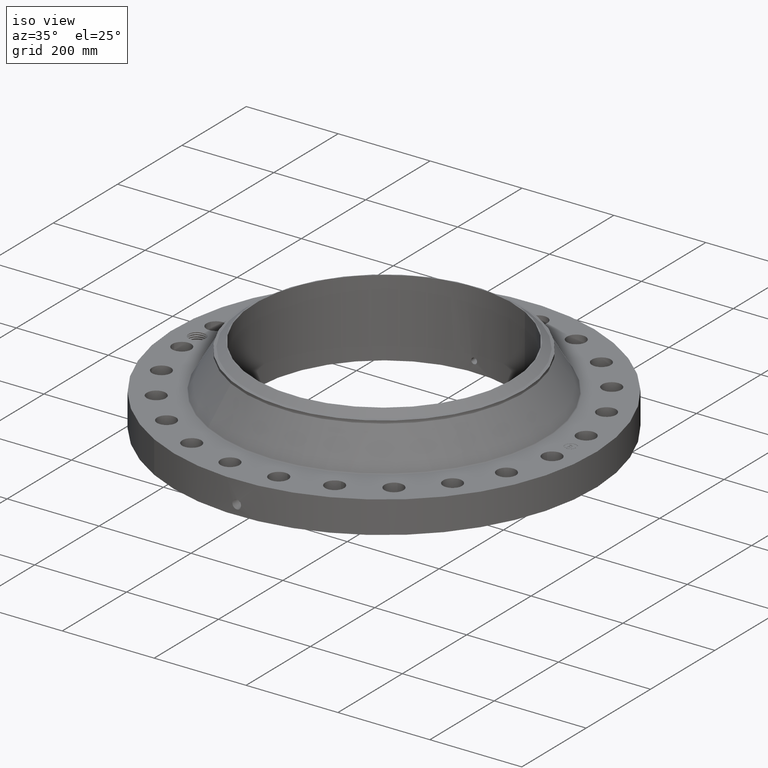
[diagram: clean part render]
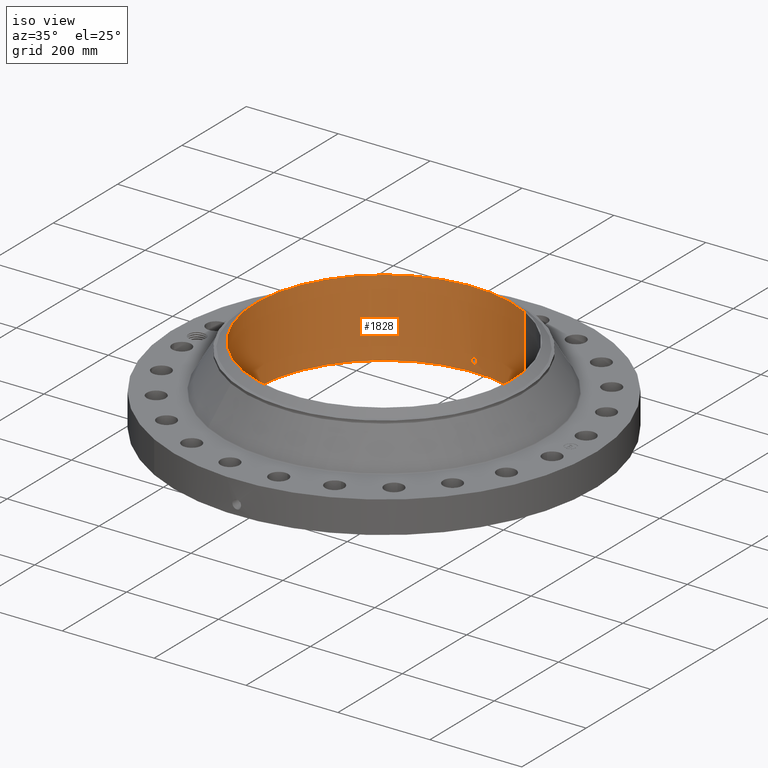
[diagram: tour spotlight — one face highlighted and labeled with its STEP entity id]
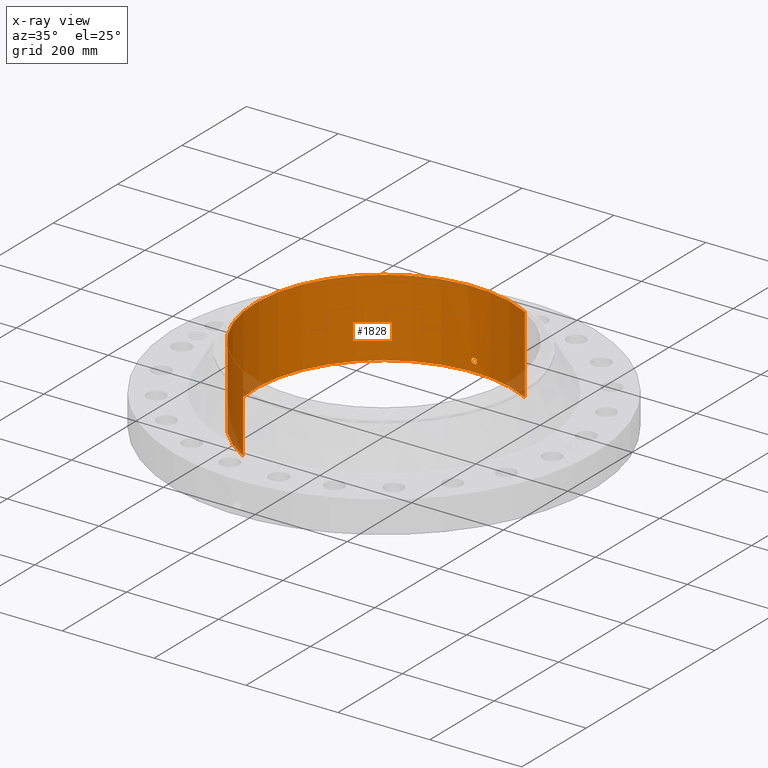
[diagram: x-ray of the same camera — body ghosted, this tour face saturated]
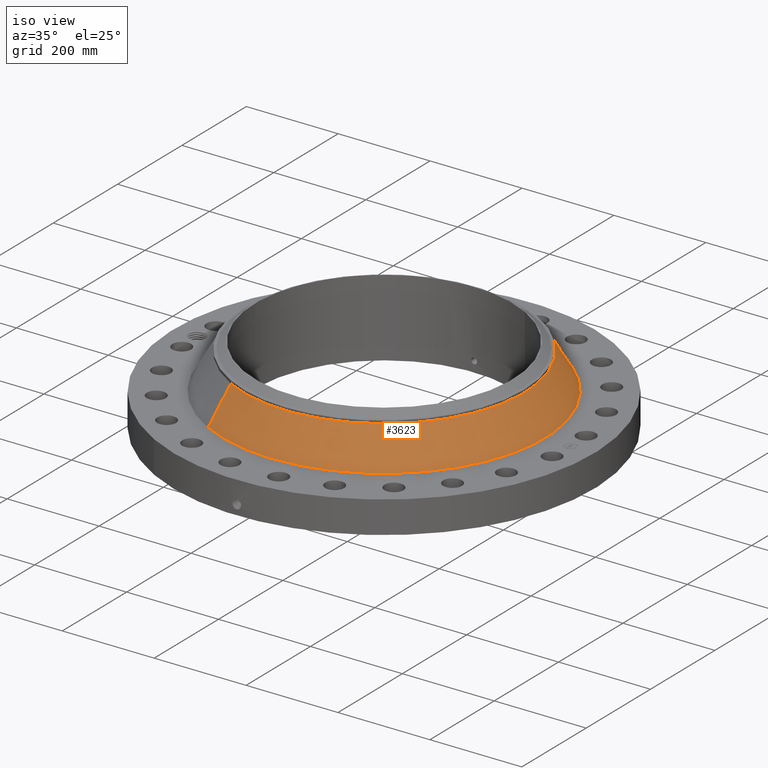
[diagram: tour spotlight — one face highlighted and labeled with its STEP entity id]
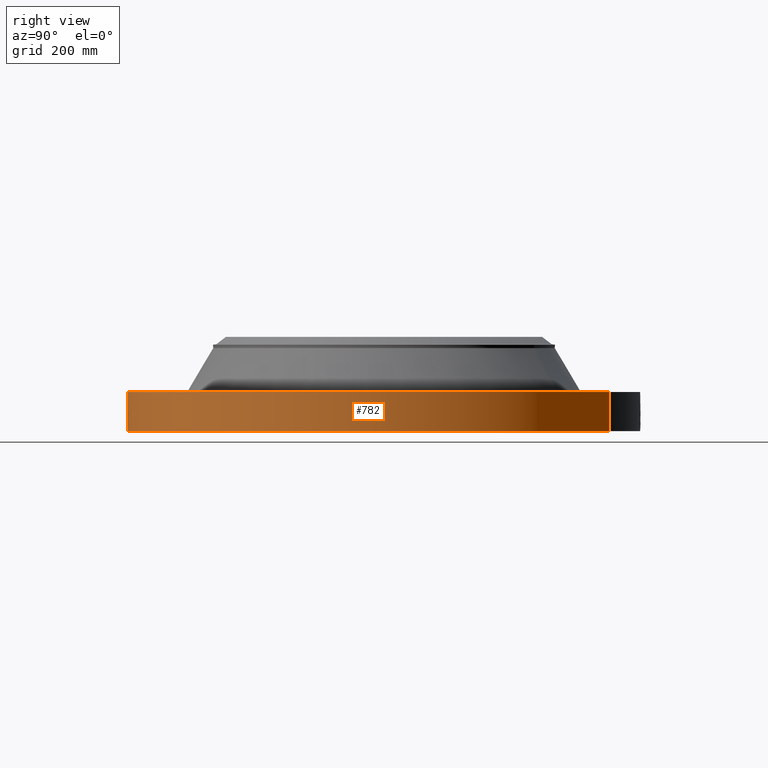
[diagram: tour spotlight — one face highlighted and labeled with its STEP entity id]
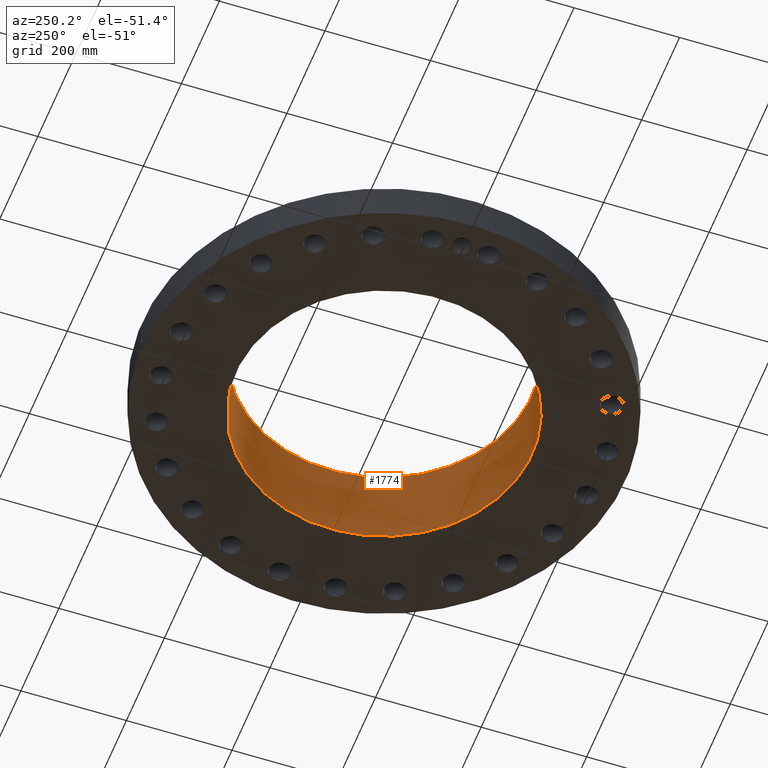
[diagram: tour spotlight — one face highlighted and labeled with its STEP entity id]
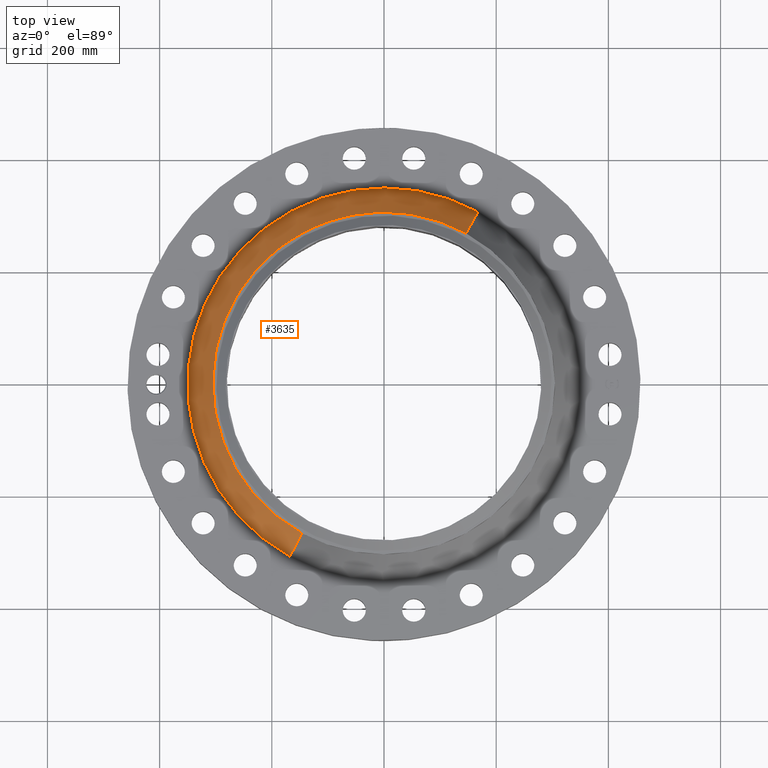
[diagram: tour spotlight — one face highlighted and labeled with its STEP entity id]
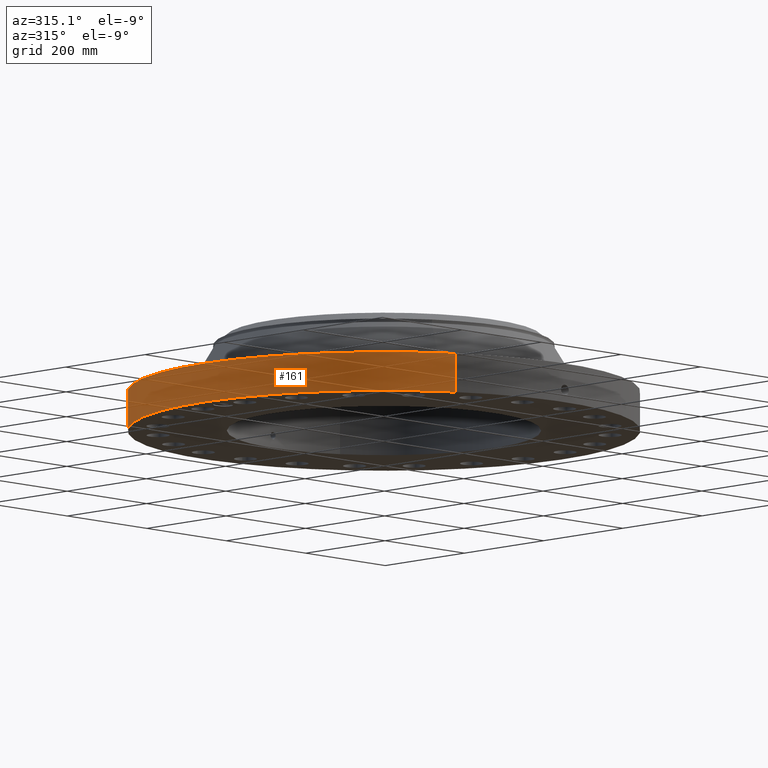
[diagram: tour spotlight — one face highlighted and labeled with its STEP entity id]
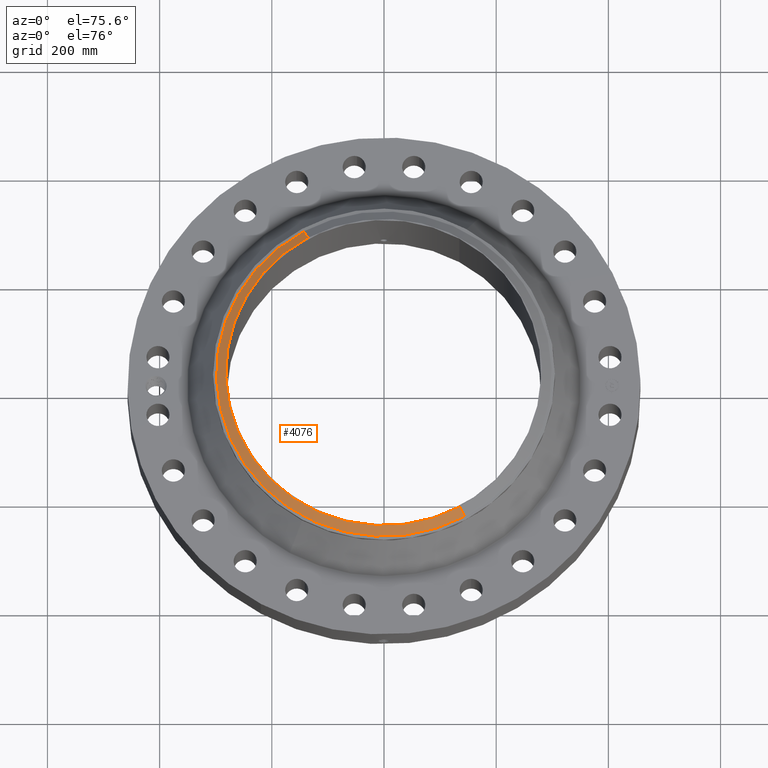
[diagram: tour spotlight — one face highlighted and labeled with its STEP entity id]
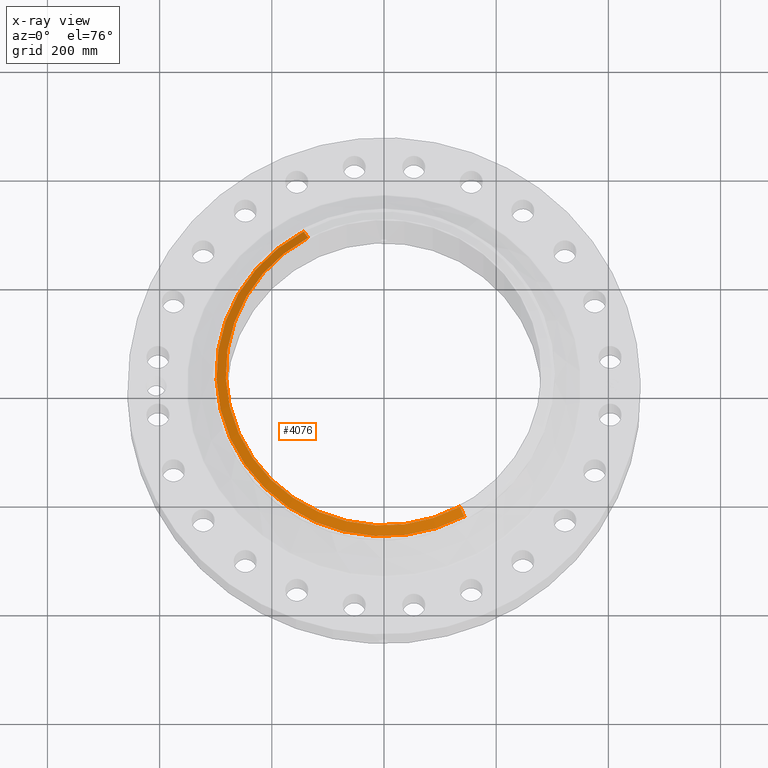
[diagram: x-ray of the same camera — body ghosted, this tour face saturated]
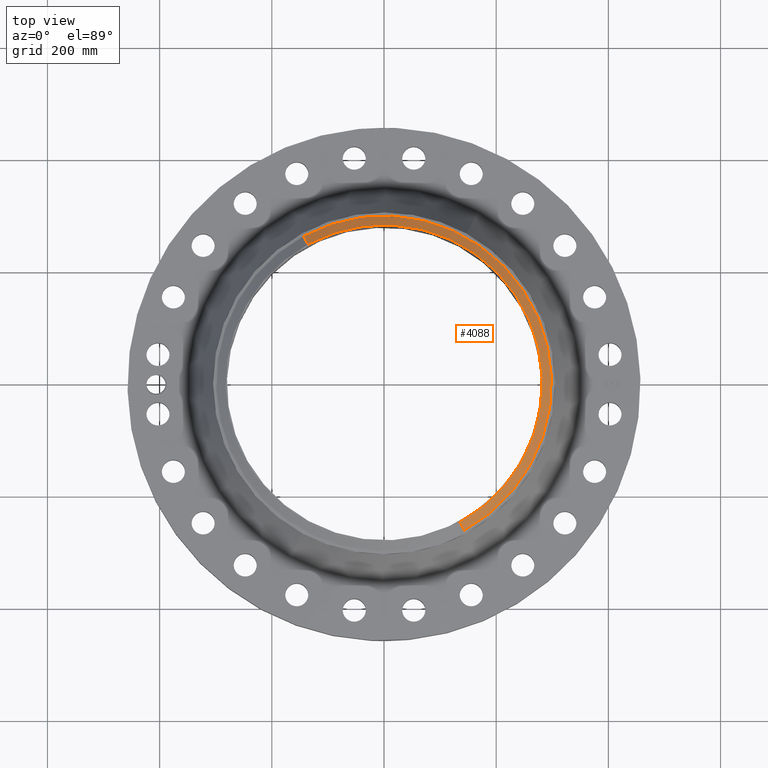
[diagram: tour spotlight — one face highlighted and labeled with its STEP entity id]
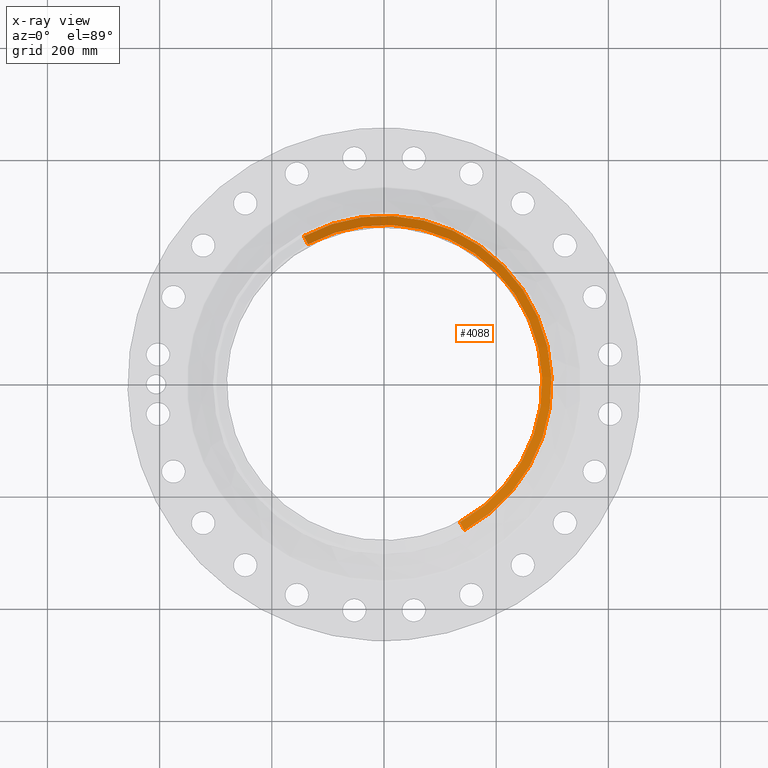
[diagram: x-ray of the same camera — body ghosted, this tour face saturated]
A machine part: a face-by-face anatomy tour. The part has 811 B-rep faces; the first image is the clean iso view, then the 8 largest visible faces are spotlighted one at a time (largest first), each with its STEP entity span.

Face 1 — iso view, entity #1828. An x-ray twin of the same camera follows (body ghosted, this face saturated) — the face is partly hidden behind the body. In plain terms, the highlighted cylindrical surface (partial cylindrical patch) has radius 280.187 mm, axis along (0, 0, -1).
Definition (entity closure, byte-faithful):
#262=AXIS2_PLACEMENT_3D('Circle Axis2P3D',#260,#261,$) ;
#1705=AXIS2_PLACEMENT_3D('Cylinder Axis2P3D',#1702,#1703,#1704) ;
#1777=AXIS2_PLACEMENT_3D('Circle Axis2P3D',#1775,#1776,$) ;
#255=CARTESIAN_POINT('Vertex',(5.28854311636,9.68061324025,0.0600000000002)) ;
#257=CARTESIAN_POINT('Vertex',(-5.28854311636,-9.68061324025,0.0600000000002)) ;
#260=CARTESIAN_POINT('Axis2P3D Location',(0.,0.,0.0600000000002)) ;
#1702=CARTESIAN_POINT('Axis2P3D Location',(0.,0.,3.37000000001)) ;
#1711=CARTESIAN_POINT('Vertex',(5.28854311636,9.68061324025,6.68000000003)) ;
#1713=CARTESIAN_POINT('Vertex',(-5.28854311636,-9.68061324025,6.68000000003)) ;
#1716=CARTESIAN_POINT('Line Origine',(5.28854311636,9.68061324025,3.37000000001)) ;
#1721=CARTESIAN_POINT('Line Origine',(-5.28854311636,-9.68061324025,3.37000000001)) ;
#1775=CARTESIAN_POINT('Axis2P3D Location',(0.,0.,6.68000000003)) ;
#1787=CARTESIAN_POINT('Control Point',(0.219395640473,11.0288180035,1.05985638466)) ;
#1788=CARTESIAN_POINT('Control Point',(0.194442744902,11.02931439,1.10553235362)) ;
#1789=CARTESIAN_POINT('Control Point',(0.157604046308,11.0299766217,1.14471319053)) ;
#1790=CARTESIAN_POINT('Control Point',(0.111104848743,11.0306207026,1.17324441451)) ;
#1791=CARTESIAN_POINT('Control Point',(0.0336689369204,11.0311331377,1.19588322566)) ;
#1792=CARTESIAN_POINT('Control Point',(-0.0446762513902,11.030956022,1.18805566324)) ;
#1793=CARTESIAN_POINT('Control Point',(-0.0703074712789,11.0308185288,1.18204211957)) ;
#1794=CARTESIAN_POINT('Control Point',(-0.14396541962,11.0302109711,1.15420674494)) ;
#1795=CARTESIAN_POINT('Control Point',(-0.203254200098,11.0292193473,1.09948605159)) ;
#1796=CARTESIAN_POINT('Control Point',(-0.232217354952,11.0285690599,1.05324252944)) ;
#1797=CARTESIAN_POINT('Control Point',(-0.255841819948,11.0280346243,0.975097496404)) ;
#1798=CARTESIAN_POINT('Control Point',(-0.248280457319,11.0282055388,0.8957371764)) ;
#1799=CARTESIAN_POINT('Control Point',(-0.242046735909,11.0283484844,0.869178407425)) ;
#1800=CARTESIAN_POINT('Control Point',(-0.232314046475,11.0285610184,0.843790598922)) ;
#1801=CARTESIAN_POINT('Control Point',(-0.219395640473,11.0288180035,0.820143615352)) ;
#1802=CARTESIAN_POINT('Vertex',(0.219395640473,11.0288180035,1.05985638466)) ;
#1804=CARTESIAN_POINT('Vertex',(-0.219395640473,11.0288180035,0.820143615352)) ;
#1808=CARTESIAN_POINT('Control Point',(-0.219395640473,11.0288180035,0.820143615352)) ;
#1809=CARTESIAN_POINT('Control Point',(-0.194442744874,11.02931439,0.774467646337)) ;
#1810=CARTESIAN_POINT('Control Point',(-0.157604046226,11.0299766217,0.735286809395)) ;
#1811=CARTESIAN_POINT('Control Point',(-0.111104848864,11.0306207026,0.70675558554)) ;
#1812=CARTESIAN_POINT('Control Point',(-0.0336689369954,11.0311331377,0.684116774346)) ;
#1813=CARTESIAN_POINT('Control Point',(0.0446762513633,11.030956022,0.691944336764)) ;
#1814=CARTESIAN_POINT('Control Point',(0.070307471291,11.0308185288,0.697957880447)) ;
#1815=CARTESIAN_POINT('Control Point',(0.143965419754,11.0302109711,0.725793255124)) ;
#1816=CARTESIAN_POINT('Control Point',(0.203254200306,11.0292193473,0.780513948612)) ;
#1817=CARTESIAN_POINT('Control Point',(0.232217354865,11.0285690599,0.826757470287)) ;
#1818=CARTESIAN_POINT('Control Point',(0.255841819961,11.0280346243,0.904902503457)) ;
#1819=CARTESIAN_POINT('Control Point',(0.24828045732,11.0282055388,0.984262823604)) ;
#1820=CARTESIAN_POINT('Control Point',(0.24204673591,11.0283484844,1.01082159258)) ;
#1821=CARTESIAN_POINT('Control Point',(0.232314046476,11.0285610184,1.03620940108)) ;
#1822=CARTESIAN_POINT('Control Point',(0.219395640473,11.0288180035,1.05985638466)) ;
#261=DIRECTION('Axis2P3D Direction',(0.,0.,-0.0393700787402)) ;
#1703=DIRECTION('Axis2P3D Direction',(0.,0.,-0.0393700787402)) ;
#1704=DIRECTION('Axis2P3D XDirection',(-0.0188750212049,-0.0345504945626,0.)) ;
#1717=DIRECTION('Vector Direction',(0.,0.,-0.0393700787402)) ;
#1722=DIRECTION('Vector Direction',(0.,0.,-0.0393700787402)) ;
#1776=DIRECTION('Axis2P3D Direction',(0.,0.,-0.0393700787402)) ;
#1718=VECTOR('Line Direction',#1717,0.0393700787402) ;
#1723=VECTOR('Line Direction',#1722,0.0393700787402) ;
#1781=ORIENTED_EDGE('',*,*,#1779,.F.) ;
#1782=ORIENTED_EDGE('',*,*,#1725,.T.) ;
#1783=ORIENTED_EDGE('',*,*,#264,.T.) ;
#1784=ORIENTED_EDGE('',*,*,#1720,.F.) ;
#1825=ORIENTED_EDGE('',*,*,#1806,.F.) ;
#1826=ORIENTED_EDGE('',*,*,#1823,.F.) ;
#1827=FACE_BOUND('',#1824,.T.) ;
#1828=ADVANCED_FACE('PartBody',(#1785,#1827),#1706,.F.) ;
#1786=B_SPLINE_CURVE_WITH_KNOTS('',5,(#1787,#1788,#1789,#1790,#1791,#1792,#1793,#1794,#1795,#1796,#1797,#1798,#1799,#1800,#1801),.UNSPECIFIED.,.F.,.U.,(6,3,3,3,6),(0.,9.34842080755,14.0229977669,23.3730436976,28.2128305319),.UNSPECIFIED.) ;
#1807=B_SPLINE_CURVE_WITH_KNOTS('',5,(#1808,#1809,#1810,#1811,#1812,#1813,#1814,#1815,#1816,#1817,#1818,#1819,#1820,#1821,#1822),.UNSPECIFIED.,.F.,.U.,(6,3,3,3,6),(0.,9.34842081791,14.0229977755,23.3730437313,28.2128305659),.UNSPECIFIED.) ;
#263=CIRCLE('generated circle',#262,11.031) ;
#1778=CIRCLE('generated circle',#1777,11.031) ;
#1706=CYLINDRICAL_SURFACE('generated cylinder',#1705,11.031) ;
#264=EDGE_CURVE('',#258,#256,#263,.T.) ;
#1720=EDGE_CURVE('',#1712,#256,#1719,.T.) ;
#1725=EDGE_CURVE('',#1714,#258,#1724,.T.) ;
#1779=EDGE_CURVE('',#1714,#1712,#1778,.T.) ;
#1806=EDGE_CURVE('',#1803,#1805,#1786,.T.) ;
#1823=EDGE_CURVE('',#1805,#1803,#1807,.T.) ;
#1780=EDGE_LOOP('',(#1781,#1782,#1783,#1784)) ;
#1824=EDGE_LOOP('',(#1825,#1826)) ;
#1785=FACE_OUTER_BOUND('',#1780,.T.) ;
#1719=LINE('Line',#1716,#1718) ;
#1724=LINE('Line',#1721,#1723) ;
#256=VERTEX_POINT('',#255) ;
#258=VERTEX_POINT('',#257) ;
#1712=VERTEX_POINT('',#1711) ;
#1714=VERTEX_POINT('',#1713) ;
#1803=VERTEX_POINT('',#1802) ;
#1805=VERTEX_POINT('',#1804) ;

Face 2 — iso view, entity #3623. In plain terms, the highlighted conical surface has half-angle 30.431 deg.
Definition (entity closure, byte-faithful):
#2882=AXIS2_PLACEMENT_3D('Circle Axis2P3D',#2880,#2881,$) ;
#3596=AXIS2_PLACEMENT_3D('Cone Axis2P3D',#3593,#3594,#3595) ;
#3607=AXIS2_PLACEMENT_3D('Circle Axis2P3D',#3605,#3606,$) ;
#2877=CARTESIAN_POINT('Vertex',(6.60418880603,12.0888865213,2.86921998732)) ;
#2880=CARTESIAN_POINT('Axis2P3D Location',(0.,0.,2.86921998732)) ;
#2884=CARTESIAN_POINT('Vertex',(-6.60418880603,-12.0888865213,2.86921998732)) ;
#3593=CARTESIAN_POINT('Axis2P3D Location',(0.,0.,5.89125151154)) ;
#3598=CARTESIAN_POINT('Line Origine',(6.17864763465,11.309938632,4.38023574943)) ;
#3602=CARTESIAN_POINT('Vertex',(5.75310646327,10.5309907427,5.89125151154)) ;
#3605=CARTESIAN_POINT('Axis2P3D Location',(0.,0.,5.89125151154)) ;
#3609=CARTESIAN_POINT('Vertex',(-5.75310646327,-10.5309907427,5.89125151154)) ;
#3612=CARTESIAN_POINT('Line Origine',(-6.17864763465,-11.309938632,4.38023574943)) ;
#2881=DIRECTION('Axis2P3D Direction',(0.,0.,-0.0393700787402)) ;
#3594=DIRECTION('Axis2P3D Direction',(0.,0.,-0.0393700787402)) ;
#3595=DIRECTION('Axis2P3D XDirection',(-0.0188750212049,-0.0345504945626,0.)) ;
#3599=DIRECTION('Vector Direction',(0.00956020023715,0.0174998291512,-0.0339464527029)) ;
#3606=DIRECTION('Axis2P3D Direction',(0.,0.,-0.0393700787402)) ;
#3613=DIRECTION('Vector Direction',(-0.00956020023715,-0.0174998291512,-0.0339464527029)) ;
#3600=VECTOR('Line Direction',#3599,0.0393700787402) ;
#3614=VECTOR('Line Direction',#3613,0.0393700787402) ;
#3618=ORIENTED_EDGE('',*,*,#2886,.F.) ;
#3619=ORIENTED_EDGE('',*,*,#3604,.T.) ;
#3620=ORIENTED_EDGE('',*,*,#3611,.T.) ;
#3621=ORIENTED_EDGE('',*,*,#3616,.F.) ;
#3623=ADVANCED_FACE('PartBody',(#3622),#3597,.T.) ;
#2883=CIRCLE('generated circle',#2882,13.7752127791) ;
#3608=CIRCLE('generated circle',#3607,12.) ;
#3597=CONICAL_SURFACE('Cone',#3596,12.,0.531120855844) ;
#2886=EDGE_CURVE('',#2878,#2885,#2883,.T.) ;
#3604=EDGE_CURVE('',#2878,#3603,#3601,.F.) ;
#3611=EDGE_CURVE('',#3603,#3610,#3608,.T.) ;
#3616=EDGE_CURVE('',#2885,#3610,#3615,.F.) ;
#3617=EDGE_LOOP('',(#3618,#3619,#3620,#3621)) ;
#3622=FACE_OUTER_BOUND('',#3617,.T.) ;
#3601=LINE('Line',#3598,#3600) ;
#3615=LINE('Line',#3612,#3614) ;
#2878=VERTEX_POINT('',#2877) ;
#2885=VERTEX_POINT('',#2884) ;
#3603=VERTEX_POINT('',#3602) ;
#3610=VERTEX_POINT('',#3609) ;

Face 3 — right view, entity #782. In plain terms, the highlighted cylindrical surface (partial cylindrical patch) has radius 457.2 mm, axis along (0, 0, -1).
Definition (entity closure, byte-faithful):
#38=AXIS2_PLACEMENT_3D('Cylinder Axis2P3D',#35,#36,#37) ;
#169=AXIS2_PLACEMENT_3D('Circle Axis2P3D',#167,#168,$) ;
#686=AXIS2_PLACEMENT_3D('Circle Axis2P3D',#684,#685,$) ;
#35=CARTESIAN_POINT('Axis2P3D Location',(0.,0.,3.37000000001)) ;
#44=CARTESIAN_POINT('Vertex',(-8.62965969491,-15.7964861141,0.0600000000002)) ;
#46=CARTESIAN_POINT('Vertex',(8.62965969491,15.7964861141,0.0600000000002)) ;
#49=CARTESIAN_POINT('Line Origine',(-8.62965969491,-15.7964861141,1.43500000001)) ;
#53=CARTESIAN_POINT('Vertex',(-8.62965969491,-15.7964861141,2.81000000001)) ;
#60=CARTESIAN_POINT('Vertex',(8.62965969491,15.7964861141,2.81000000001)) ;
#63=CARTESIAN_POINT('Line Origine',(8.62965969491,15.7964861141,1.43500000001)) ;
#167=CARTESIAN_POINT('Axis2P3D Location',(0.,0.,0.0600000000002)) ;
#684=CARTESIAN_POINT('Axis2P3D Location',(0.,0.,2.81000000001)) ;
#696=CARTESIAN_POINT('Control Point',(0.000715916272516,-17.9999999858,1.29411846164)) ;
#697=CARTESIAN_POINT('Control Point',(0.018794767014,-17.9999992668,1.29408195945)) ;
#698=CARTESIAN_POINT('Control Point',(0.0368704907854,-17.9999710998,1.29265734614)) ;
#699=CARTESIAN_POINT('Control Point',(0.0547316628354,-17.99991679,1.28986144223)) ;
#700=CARTESIAN_POINT('Vertex',(0.00071561728658,-17.9999999858,1.2941185108)) ;
#702=CARTESIAN_POINT('Vertex',(0.054723070488,-17.9999170677,1.28986280481)) ;
#706=CARTESIAN_POINT('Control Point',(0.054722976633,-17.9999168164,1.28986226213)) ;
#707=CARTESIAN_POINT('Control Point',(0.0953738332169,-17.9997932305,1.28552531456)) ;
#708=CARTESIAN_POINT('Control Point',(0.135409945979,-17.9995285052,1.27380449255)) ;
#709=CARTESIAN_POINT('Control Point',(0.172317078189,-17.9991751707,1.25545477223)) ;
#710=CARTESIAN_POINT('Vertex',(0.172317078189,-17.9991751707,1.25545477223)) ;
#714=CARTESIAN_POINT('Control Point',(0.0311785035352,-17.9999729973,0.531201562891)) ;
#715=CARTESIAN_POINT('Control Point',(0.071802499504,-17.9999026308,0.536338161167)) ;
#716=CARTESIAN_POINT('Control Point',(0.111634499071,-17.9997190308,0.54672885578)) ;
#717=CARTESIAN_POINT('Control Point',(0.149741617216,-17.9994324956,0.56221850727)) ;
#718=CARTESIAN_POINT('Control Point',(0.239620396416,-17.9985293262,0.613169843021)) ;
#719=CARTESIAN_POINT('Control Point',(0.308806249509,-17.9974126624,0.690006161424)) ;
#720=CARTESIAN_POINT('Control Point',(0.340722284388,-17.9967939004,0.743754792611)) ;
#721=CARTESIAN_POINT('Control Point',(0.375373751709,-17.9960901162,0.841059821661)) ;
#722=CARTESIAN_POINT('Control Point',(0.377750076793,-17.9960345675,0.942362779163)) ;
#723=CARTESIAN_POINT('Control Point',(0.373383149188,-17.9961284653,0.982905031293)) ;
#724=CARTESIAN_POINT('Control Point',(0.350799748737,-17.9966011635,1.07574548386)) ;
#725=CARTESIAN_POINT('Control Point',(0.30097918796,-17.9975215948,1.15733410869)) ;
#726=CARTESIAN_POINT('Control Point',(0.264028464088,-17.9981368944,1.19844198085)) ;
#727=CARTESIAN_POINT('Control Point',(0.220353851539,-17.9987152854,1.23157154256)) ;
#728=CARTESIAN_POINT('Control Point',(0.172317078189,-17.9991751707,1.25545477223)) ;
#729=CARTESIAN_POINT('Vertex',(0.0311785035352,-17.9999729973,0.531201562891)) ;
#733=CARTESIAN_POINT('Control Point',(0.0311785035352,-17.9999729973,0.531201562891)) ;
#734=CARTESIAN_POINT('Control Point',(0.0207810348001,-17.9999910072,0.530876353489)) ;
#735=CARTESIAN_POINT('Control Point',(0.0103754059314,-18.0000000016,0.5309342353)) ;
#736=CARTESIAN_POINT('Control Point',(-2.72878352964E-006,-18.0000000001,0.531374667806)) ;
#737=CARTESIAN_POINT('Vertex',(-2.72878354635E-006,-18.0000000001,0.531374667806)) ;
#741=CARTESIAN_POINT('Control Point',(-0.192490992805,-17.9989707267,0.587658904988)) ;
#742=CARTESIAN_POINT('Control Point',(-0.148953542637,-17.9994363404,0.562184957814)) ;
#743=CARTESIAN_POINT('Control Point',(-0.101107482183,-17.9998082664,0.543830382583)) ;
#744=CARTESIAN_POINT('Control Point',(-0.0508027302719,-17.9999999924,0.533530543736)) ;
#745=CARTESIAN_POINT('Control Point',(-2.72878352965E-006,-18.0000000001,0.531374667806)) ;
#746=CARTESIAN_POINT('Vertex',(-0.192490992805,-17.9989707267,0.587658904988)) ;
#750=CARTESIAN_POINT('Control Point',(-0.192490992805,-17.9989707267,0.587658904988)) ;
#751=CARTESIAN_POINT('Control Point',(-0.249225140634,-17.9983639802,0.62085429578)) ;
#752=CARTESIAN_POINT('Control Point',(-0.29911862737,-17.9976068279,0.665382621905)) ;
#753=CARTESIAN_POINT('Control Point',(-0.339016735981,-17.9968404577,0.719620461573)) ;
#754=CARTESIAN_POINT('Control Point',(-0.382904584845,-17.9959349998,0.817936937069)) ;
#755=CARTESIAN_POINT('Control Point',(-0.391223224504,-17.9957468042,0.923210605772)) ;
#756=CARTESIAN_POINT('Control Point',(-0.389017375864,-17.9957960737,0.963428947668)) ;
#757=CARTESIAN_POINT('Control Point',(-0.36934914129,-17.9962276358,1.06643517058)) ;
#758=CARTESIAN_POINT('Control Point',(-0.315771155087,-17.9972806993,1.15717933693)) ;
#759=CARTESIAN_POINT('Control Point',(-0.271217967036,-17.9980645582,1.20479213958)) ;
#760=CARTESIAN_POINT('Control Point',(-0.190427156307,-17.9991387671,1.26072522641)) ;
#761=CARTESIAN_POINT('Control Point',(-0.0985097274399,-17.9997740421,1.28789388359)) ;
#762=CARTESIAN_POINT('Control Point',(-0.0657534719722,-17.9999256067,1.29368529426)) ;
#763=CARTESIAN_POINT('Control Point',(-0.0327250899315,-18.0000000471,1.29575873174)) ;
#764=CARTESIAN_POINT('Control Point',(2.58579355424E-005,-18.0000000001,1.29415298429)) ;
#765=CARTESIAN_POINT('Vertex',(2.58579355492E-005,-18.0000000001,1.29415298429)) ;
#769=CARTESIAN_POINT('Control Point',(0.000715617277093,-17.9999999858,1.29411851078)) ;
#770=CARTESIAN_POINT('Control Point',(0.000370762243298,-17.9999999996,1.29413607398)) ;
#771=CARTESIAN_POINT('Control Point',(2.58579404369E-005,-18.0000000001,1.29415298429)) ;
#36=DIRECTION('Axis2P3D Direction',(0.,0.,-0.0393700787402)) ;
#37=DIRECTION('Axis2P3D XDirection',(0.0188750212049,0.0345504945626,0.)) ;
#50=DIRECTION('Vector Direction',(0.,0.,-0.0393700787402)) ;
#64=DIRECTION('Vector Direction',(0.,0.,-0.0393700787402)) ;
#168=DIRECTION('Axis2P3D Direction',(0.,0.,-0.0393700787402)) ;
#685=DIRECTION('Axis2P3D Direction',(0.,0.,-0.0393700787402)) ;
#51=VECTOR('Line Direction',#50,0.0393700787402) ;
#65=VECTOR('Line Direction',#64,0.0393700787402) ;
#690=ORIENTED_EDGE('',*,*,#171,.F.) ;
#691=ORIENTED_EDGE('',*,*,#67,.T.) ;
#692=ORIENTED_EDGE('',*,*,#688,.T.) ;
#693=ORIENTED_EDGE('',*,*,#55,.F.) ;
#774=ORIENTED_EDGE('',*,*,#704,.T.) ;
#775=ORIENTED_EDGE('',*,*,#712,.T.) ;
#776=ORIENTED_EDGE('',*,*,#731,.F.) ;
#777=ORIENTED_EDGE('',*,*,#739,.T.) ;
#778=ORIENTED_EDGE('',*,*,#748,.F.) ;
#779=ORIENTED_EDGE('',*,*,#767,.T.) ;
#780=ORIENTED_EDGE('',*,*,#772,.F.) ;
#781=FACE_BOUND('',#773,.T.) ;
#782=ADVANCED_FACE('PartBody',(#694,#781),#39,.T.) ;
#695=B_SPLINE_CURVE_WITH_KNOTS('',3,(#696,#697,#698,#699),.UNSPECIFIED.,.F.,.U.,(4,4),(34.616785024,36.6224614784),.UNSPECIFIED.) ;
#705=B_SPLINE_CURVE_WITH_KNOTS('',3,(#706,#707,#708,#709),.UNSPECIFIED.,.F.,.U.,(4,4),(0.,4.59363155679),.UNSPECIFIED.) ;
#713=B_SPLINE_CURVE_WITH_KNOTS('',5,(#714,#715,#716,#717,#718,#719,#720,#721,#722,#723,#724,#725,#726,#727,#728),.UNSPECIFIED.,.F.,.U.,(6,3,3,3,6),(0.,7.11615119467,18.0025199716,25.3409691079,35.3057659969),.UNSPECIFIED.) ;
#732=B_SPLINE_CURVE_WITH_KNOTS('',3,(#733,#734,#735,#736),.UNSPECIFIED.,.F.,.U.,(4,4),(0.,1.08463646199),.UNSPECIFIED.) ;
#740=B_SPLINE_CURVE_WITH_KNOTS('',4,(#741,#742,#743,#744,#745),.UNSPECIFIED.,.F.,.U.,(5,5),(0.,7.07892575861),.UNSPECIFIED.) ;
#749=B_SPLINE_CURVE_WITH_KNOTS('',5,(#750,#751,#752,#753,#754,#755,#756,#757,#758,#759,#760,#761,#762,#763,#764),.UNSPECIFIED.,.F.,.U.,(6,3,3,3,6),(0.,11.5307860791,18.6312315201,30.1312120278,36.2530440846),.UNSPECIFIED.) ;
#768=B_SPLINE_CURVE_WITH_KNOTS('',2,(#769,#770,#771),.UNSPECIFIED.,.F.,.U.,(3,3),(1.01704989143,1.04283780222),.UNSPECIFIED.) ;
#170=CIRCLE('generated circle',#169,18.0000000001) ;
#687=CIRCLE('generated circle',#686,18.0000000001) ;
#39=CYLINDRICAL_SURFACE('generated cylinder',#38,18.0000000001) ;
#55=EDGE_CURVE('',#45,#54,#52,.F.) ;
#67=EDGE_CURVE('',#47,#61,#66,.F.) ;
#171=EDGE_CURVE('',#47,#45,#170,.T.) ;
#688=EDGE_CURVE('',#61,#54,#687,.T.) ;
#704=EDGE_CURVE('',#701,#703,#695,.T.) ;
#712=EDGE_CURVE('',#703,#711,#705,.T.) ;
#731=EDGE_CURVE('',#730,#711,#713,.T.) ;
#739=EDGE_CURVE('',#730,#738,#732,.T.) ;
#748=EDGE_CURVE('',#747,#738,#740,.T.) ;
#767=EDGE_CURVE('',#747,#766,#749,.T.) ;
#772=EDGE_CURVE('',#701,#766,#768,.T.) ;
#689=EDGE_LOOP('',(#690,#691,#692,#693)) ;
#773=EDGE_LOOP('',(#774,#775,#776,#777,#778,#779,#780)) ;
#694=FACE_OUTER_BOUND('',#689,.T.) ;
#52=LINE('Line',#49,#51) ;
#66=LINE('Line',#63,#65) ;
#45=VERTEX_POINT('',#44) ;
#47=VERTEX_POINT('',#46) ;
#54=VERTEX_POINT('',#53) ;
#61=VERTEX_POINT('',#60) ;
#701=VERTEX_POINT('',#700) ;
#703=VERTEX_POINT('',#702) ;
#711=VERTEX_POINT('',#710) ;
#730=VERTEX_POINT('',#729) ;
#738=VERTEX_POINT('',#737) ;
#747=VERTEX_POINT('',#746) ;
#766=VERTEX_POINT('',#765) ;

Face 4 — auxiliary view, entity #1774. In plain terms, the highlighted cylindrical surface (partial cylindrical patch) has radius 280.187 mm, axis along (0, 0, -1).
Definition (entity closure, byte-faithful):
#253=AXIS2_PLACEMENT_3D('Circle Axis2P3D',#251,#252,$) ;
#1705=AXIS2_PLACEMENT_3D('Cylinder Axis2P3D',#1702,#1703,#1704) ;
#1709=AXIS2_PLACEMENT_3D('Circle Axis2P3D',#1707,#1708,$) ;
#251=CARTESIAN_POINT('Axis2P3D Location',(0.,0.,0.0600000000002)) ;
#255=CARTESIAN_POINT('Vertex',(5.28854311636,9.68061324025,0.0600000000002)) ;
#257=CARTESIAN_POINT('Vertex',(-5.28854311636,-9.68061324025,0.0600000000002)) ;
#1702=CARTESIAN_POINT('Axis2P3D Location',(0.,0.,3.37000000001)) ;
#1707=CARTESIAN_POINT('Axis2P3D Location',(0.,0.,6.68000000003)) ;
#1711=CARTESIAN_POINT('Vertex',(5.28854311636,9.68061324025,6.68000000003)) ;
#1713=CARTESIAN_POINT('Vertex',(-5.28854311636,-9.68061324025,6.68000000003)) ;
#1716=CARTESIAN_POINT('Line Origine',(5.28854311636,9.68061324025,3.37000000001)) ;
#1721=CARTESIAN_POINT('Line Origine',(-5.28854311636,-9.68061324025,3.37000000001)) ;
#1733=CARTESIAN_POINT('Control Point',(0.219395640473,-11.0288180035,0.820143615352)) ;
#1734=CARTESIAN_POINT('Control Point',(0.194442744882,-11.02931439,0.77446764635)) ;
#1735=CARTESIAN_POINT('Control Point',(0.157604046248,-11.0299766217,0.735286809417)) ;
#1736=CARTESIAN_POINT('Control Point',(0.111104848835,-11.0306207026,0.70675558553)) ;
#1737=CARTESIAN_POINT('Control Point',(0.0336689369562,-11.0311331377,0.68411677434)) ;
#1738=CARTESIAN_POINT('Control Point',(-0.0446762514132,-11.030956022,0.691944336769)) ;
#1739=CARTESIAN_POINT('Control Point',(-0.0703074712418,-11.0308185288,0.697957880429)) ;
#1740=CARTESIAN_POINT('Control Point',(-0.143965419661,-11.0302109711,0.725793255077)) ;
#1741=CARTESIAN_POINT('Control Point',(-0.203254200188,-11.0292193473,0.780513948504)) ;
#1742=CARTESIAN_POINT('Control Point',(-0.232217354911,-11.0285690599,0.826757470438)) ;
#1743=CARTESIAN_POINT('Control Point',(-0.255841819967,-11.0280346243,0.90490250358)) ;
#1744=CARTESIAN_POINT('Control Point',(-0.248280457312,-11.0282055388,0.984262823696)) ;
#1745=CARTESIAN_POINT('Control Point',(-0.242046735944,-11.0283484844,1.01082159249)) ;
#1746=CARTESIAN_POINT('Control Point',(-0.232314046498,-11.0285610184,1.03620940104)) ;
#1747=CARTESIAN_POINT('Control Point',(-0.219395640473,-11.0288180035,1.05985638466)) ;
#1748=CARTESIAN_POINT('Vertex',(0.219395640473,-11.0288180035,0.820143615352)) ;
#1750=CARTESIAN_POINT('Vertex',(-0.219395640473,-11.0288180035,1.05985638466)) ;
#1754=CARTESIAN_POINT('Control Point',(-0.219395640473,-11.0288180035,1.05985638466)) ;
#1755=CARTESIAN_POINT('Control Point',(-0.19444274487,-11.02931439,1.10553235368)) ;
#1756=CARTESIAN_POINT('Control Point',(-0.157604046214,-11.0299766217,1.14471319063)) ;
#1757=CARTESIAN_POINT('Control Point',(-0.111104848876,-11.0306207026,1.17324441447)) ;
#1758=CARTESIAN_POINT('Control Point',(-0.0336689369968,-11.0311331377,1.19588322566)) ;
#1759=CARTESIAN_POINT('Control Point',(0.0446762513717,-11.030956022,1.18805566324)) ;
#1760=CARTESIAN_POINT('Control Point',(0.0703074712945,-11.0308185288,1.18204211956)) ;
#1761=CARTESIAN_POINT('Control Point',(0.143965419656,-11.0302109711,1.15420674492)) ;
#1762=CARTESIAN_POINT('Control Point',(0.203254200145,-11.0292193473,1.09948605154)) ;
#1763=CARTESIAN_POINT('Control Point',(0.232217354933,-11.0285690599,1.0532425295)) ;
#1764=CARTESIAN_POINT('Control Point',(0.255841819972,-11.0280346243,0.975097496368)) ;
#1765=CARTESIAN_POINT('Control Point',(0.248280457306,-11.0282055388,0.89573717626)) ;
#1766=CARTESIAN_POINT('Control Point',(0.242046735959,-11.0283484844,0.869178407557)) ;
#1767=CARTESIAN_POINT('Control Point',(0.232314046508,-11.0285610184,0.843790598983)) ;
#1768=CARTESIAN_POINT('Control Point',(0.219395640473,-11.0288180035,0.820143615352)) ;
#252=DIRECTION('Axis2P3D Direction',(0.,0.,-0.0393700787402)) ;
#1703=DIRECTION('Axis2P3D Direction',(0.,0.,-0.0393700787402)) ;
#1704=DIRECTION('Axis2P3D XDirection',(-0.0188750212049,-0.0345504945626,0.)) ;
#1708=DIRECTION('Axis2P3D Direction',(0.,0.,-0.0393700787402)) ;
#1717=DIRECTION('Vector Direction',(0.,0.,-0.0393700787402)) ;
#1722=DIRECTION('Vector Direction',(0.,0.,-0.0393700787402)) ;
#1718=VECTOR('Line Direction',#1717,0.0393700787402) ;
#1723=VECTOR('Line Direction',#1722,0.0393700787402) ;
#1727=ORIENTED_EDGE('',*,*,#1715,.F.) ;
#1728=ORIENTED_EDGE('',*,*,#1720,.T.) ;
#1729=ORIENTED_EDGE('',*,*,#259,.T.) ;
#1730=ORIENTED_EDGE('',*,*,#1725,.F.) ;
#1771=ORIENTED_EDGE('',*,*,#1752,.F.) ;
#1772=ORIENTED_EDGE('',*,*,#1769,.F.) ;
#1773=FACE_BOUND('',#1770,.T.) ;
#1774=ADVANCED_FACE('PartBody',(#1731,#1773),#1706,.F.) ;
#1732=B_SPLINE_CURVE_WITH_KNOTS('',5,(#1733,#1734,#1735,#1736,#1737,#1738,#1739,#1740,#1741,#1742,#1743,#1744,#1745,#1746,#1747),.UNSPECIFIED.,.F.,.U.,(6,3,3,3,6),(0.,9.34842081521,14.0229977773,23.3730437194,28.2128305623),.UNSPECIFIED.) ;
#1753=B_SPLINE_CURVE_WITH_KNOTS('',5,(#1754,#1755,#1756,#1757,#1758,#1759,#1760,#1761,#1762,#1763,#1764,#1765,#1766,#1767,#1768),.UNSPECIFIED.,.F.,.U.,(6,3,3,3,6),(0.,9.34842081949,14.0229977773,23.3730437137,28.2128305605),.UNSPECIFIED.) ;
#254=CIRCLE('generated circle',#253,11.031) ;
#1710=CIRCLE('generated circle',#1709,11.031) ;
#1706=CYLINDRICAL_SURFACE('generated cylinder',#1705,11.031) ;
#259=EDGE_CURVE('',#256,#258,#254,.T.) ;
#1715=EDGE_CURVE('',#1712,#1714,#1710,.T.) ;
#1720=EDGE_CURVE('',#1712,#256,#1719,.T.) ;
#1725=EDGE_CURVE('',#1714,#258,#1724,.T.) ;
#1752=EDGE_CURVE('',#1749,#1751,#1732,.T.) ;
#1769=EDGE_CURVE('',#1751,#1749,#1753,.T.) ;
#1726=EDGE_LOOP('',(#1727,#1728,#1729,#1730)) ;
#1770=EDGE_LOOP('',(#1771,#1772)) ;
#1731=FACE_OUTER_BOUND('',#1726,.T.) ;
#1719=LINE('Line',#1716,#1718) ;
#1724=LINE('Line',#1721,#1723) ;
#256=VERTEX_POINT('',#255) ;
#258=VERTEX_POINT('',#257) ;
#1712=VERTEX_POINT('',#1711) ;
#1714=VERTEX_POINT('',#1713) ;
#1749=VERTEX_POINT('',#1748) ;
#1751=VERTEX_POINT('',#1750) ;

Face 5 — top view, entity #3635. In plain terms, the highlighted conical surface has half-angle 30.431 deg.
Definition (entity closure, byte-faithful):
#2901=AXIS2_PLACEMENT_3D('Circle Axis2P3D',#2899,#2900,$) ;
#3596=AXIS2_PLACEMENT_3D('Cone Axis2P3D',#3593,#3594,#3595) ;
#3626=AXIS2_PLACEMENT_3D('Circle Axis2P3D',#3624,#3625,$) ;
#2877=CARTESIAN_POINT('Vertex',(6.60418880603,12.0888865213,2.86921998732)) ;
#2884=CARTESIAN_POINT('Vertex',(-6.60418880603,-12.0888865213,2.86921998732)) ;
#2899=CARTESIAN_POINT('Axis2P3D Location',(0.,0.,2.86921998732)) ;
#3593=CARTESIAN_POINT('Axis2P3D Location',(0.,0.,5.89125151154)) ;
#3598=CARTESIAN_POINT('Line Origine',(6.17864763465,11.309938632,4.38023574943)) ;
#3602=CARTESIAN_POINT('Vertex',(5.75310646327,10.5309907427,5.89125151154)) ;
#3609=CARTESIAN_POINT('Vertex',(-5.75310646327,-10.5309907427,5.89125151154)) ;
#3612=CARTESIAN_POINT('Line Origine',(-6.17864763465,-11.309938632,4.38023574943)) ;
#3624=CARTESIAN_POINT('Axis2P3D Location',(0.,0.,5.89125151154)) ;
#2900=DIRECTION('Axis2P3D Direction',(0.,0.,-0.0393700787402)) ;
#3594=DIRECTION('Axis2P3D Direction',(0.,0.,-0.0393700787402)) ;
#3595=DIRECTION('Axis2P3D XDirection',(-0.0188750212049,-0.0345504945626,0.)) ;
#3599=DIRECTION('Vector Direction',(0.00956020023715,0.0174998291512,-0.0339464527029)) ;
#3613=DIRECTION('Vector Direction',(-0.00956020023715,-0.0174998291512,-0.0339464527029)) ;
#3625=DIRECTION('Axis2P3D Direction',(0.,0.,-0.0393700787402)) ;
#3600=VECTOR('Line Direction',#3599,0.0393700787402) ;
#3614=VECTOR('Line Direction',#3613,0.0393700787402) ;
#3630=ORIENTED_EDGE('',*,*,#2903,.F.) ;
#3631=ORIENTED_EDGE('',*,*,#3616,.T.) ;
#3632=ORIENTED_EDGE('',*,*,#3628,.T.) ;
#3633=ORIENTED_EDGE('',*,*,#3604,.F.) ;
#3635=ADVANCED_FACE('PartBody',(#3634),#3597,.T.) ;
#2902=CIRCLE('generated circle',#2901,13.7752127791) ;
#3627=CIRCLE('generated circle',#3626,12.) ;
#3597=CONICAL_SURFACE('Cone',#3596,12.,0.531120855844) ;
#2903=EDGE_CURVE('',#2885,#2878,#2902,.T.) ;
#3604=EDGE_CURVE('',#2878,#3603,#3601,.F.) ;
#3616=EDGE_CURVE('',#2885,#3610,#3615,.F.) ;
#3628=EDGE_CURVE('',#3610,#3603,#3627,.T.) ;
#3629=EDGE_LOOP('',(#3630,#3631,#3632,#3633)) ;
#3634=FACE_OUTER_BOUND('',#3629,.T.) ;
#3601=LINE('Line',#3598,#3600) ;
#3615=LINE('Line',#3612,#3614) ;
#2878=VERTEX_POINT('',#2877) ;
#2885=VERTEX_POINT('',#2884) ;
#3603=VERTEX_POINT('',#3602) ;
#3610=VERTEX_POINT('',#3609) ;

Face 6 — auxiliary view, entity #161. In plain terms, the highlighted cylindrical surface (partial cylindrical patch) has radius 457.2 mm, axis along (0, 0, -1).
Definition (entity closure, byte-faithful):
#38=AXIS2_PLACEMENT_3D('Cylinder Axis2P3D',#35,#36,#37) ;
#42=AXIS2_PLACEMENT_3D('Circle Axis2P3D',#40,#41,$) ;
#58=AXIS2_PLACEMENT_3D('Circle Axis2P3D',#56,#57,$) ;
#35=CARTESIAN_POINT('Axis2P3D Location',(0.,0.,3.37000000001)) ;
#40=CARTESIAN_POINT('Axis2P3D Location',(0.,0.,0.0600000000002)) ;
#44=CARTESIAN_POINT('Vertex',(-8.62965969491,-15.7964861141,0.0600000000002)) ;
#46=CARTESIAN_POINT('Vertex',(8.62965969491,15.7964861141,0.0600000000002)) ;
#49=CARTESIAN_POINT('Line Origine',(-8.62965969491,-15.7964861141,1.43500000001)) ;
#53=CARTESIAN_POINT('Vertex',(-8.62965969491,-15.7964861141,2.81000000001)) ;
#56=CARTESIAN_POINT('Axis2P3D Location',(0.,0.,2.81000000001)) ;
#60=CARTESIAN_POINT('Vertex',(8.62965969491,15.7964861141,2.81000000001)) ;
#63=CARTESIAN_POINT('Line Origine',(8.62965969491,15.7964861141,1.43500000001)) ;
#75=CARTESIAN_POINT('Control Point',(-0.000715916274661,17.9999999858,1.29411846164)) ;
#76=CARTESIAN_POINT('Control Point',(-0.018794767023,17.9999992668,1.29408195945)) ;
#77=CARTESIAN_POINT('Control Point',(-0.0368704907874,17.9999710998,1.29265734614)) ;
#78=CARTESIAN_POINT('Control Point',(-0.0547316628362,17.99991679,1.28986144223)) ;
#79=CARTESIAN_POINT('Vertex',(-0.000715617286584,17.9999999858,1.2941185108)) ;
#81=CARTESIAN_POINT('Vertex',(-0.054723070488,17.9999170677,1.28986280481)) ;
#85=CARTESIAN_POINT('Control Point',(-0.054722976633,17.9999168164,1.28986226213)) ;
#86=CARTESIAN_POINT('Control Point',(-0.095373833201,17.9997932305,1.28552531456)) ;
#87=CARTESIAN_POINT('Control Point',(-0.135409945993,17.9995285052,1.27380449254)) ;
#88=CARTESIAN_POINT('Control Point',(-0.172317078189,17.9991751707,1.25545477223)) ;
#89=CARTESIAN_POINT('Vertex',(-0.172317078189,17.9991751707,1.25545477223)) ;
#93=CARTESIAN_POINT('Control Point',(-0.0311785035352,17.9999729973,0.531201562891)) ;
#94=CARTESIAN_POINT('Control Point',(-0.0718024994849,17.9999026308,0.536338161165)) ;
#95=CARTESIAN_POINT('Control Point',(-0.111634499034,17.9997190308,0.546728855768)) ;
#96=CARTESIAN_POINT('Control Point',(-0.149741617246,17.9994324956,0.562218507288)) ;
#97=CARTESIAN_POINT('Control Point',(-0.239620396387,17.9985293262,0.613169843011)) ;
#98=CARTESIAN_POINT('Control Point',(-0.308806249445,17.9974126624,0.690006161352)) ;
#99=CARTESIAN_POINT('Control Point',(-0.340722284417,17.9967939004,0.743754792694)) ;
#100=CARTESIAN_POINT('Control Point',(-0.375373751698,17.9960901162,0.841059821668)) ;
#101=CARTESIAN_POINT('Control Point',(-0.377750076791,17.9960345675,0.942362779085)) ;
#102=CARTESIAN_POINT('Control Point',(-0.373383149171,17.9961284653,0.982905031362)) ;
#103=CARTESIAN_POINT('Control Point',(-0.350799748722,17.9966011635,1.07574548387)) ;
#104=CARTESIAN_POINT('Control Point',(-0.300979187977,17.9975215948,1.15733410866)) ;
#105=CARTESIAN_POINT('Control Point',(-0.264028464066,17.9981368944,1.19844198088)) ;
#106=CARTESIAN_POINT('Control Point',(-0.220353851526,17.9987152854,1.23157154257)) ;
#107=CARTESIAN_POINT('Control Point',(-0.172317078189,17.9991751707,1.25545477223)) ;
#108=CARTESIAN_POINT('Vertex',(-0.0311785035352,17.9999729973,0.531201562891)) ;
#112=CARTESIAN_POINT('Control Point',(-0.0311785035352,17.9999729973,0.531201562891)) ;
#113=CARTESIAN_POINT('Control Point',(-0.0207810348001,17.9999910072,0.530876353489)) ;
#114=CARTESIAN_POINT('Control Point',(-0.0103754059313,18.0000000016,0.5309342353)) ;
#115=CARTESIAN_POINT('Control Point',(2.7287835594E-006,18.0000000001,0.531374667806)) ;
#116=CARTESIAN_POINT('Vertex',(2.72878354411E-006,18.0000000001,0.531374667806)) ;
#120=CARTESIAN_POINT('Control Point',(0.192490992805,17.9989707267,0.587658904988)) ;
#121=CARTESIAN_POINT('Control Point',(0.148953542646,17.9994363404,0.562184957819)) ;
#122=CARTESIAN_POINT('Control Point',(0.101107482173,17.9998082664,0.54383038258)) ;
#123=CARTESIAN_POINT('Control Point',(0.0508027302623,17.9999999924,0.533530543736)) ;
#124=CARTESIAN_POINT('Control Point',(2.72878359137E-006,18.0000000001,0.531374667806)) ;
#125=CARTESIAN_POINT('Vertex',(0.192490992805,17.9989707267,0.587658904988)) ;
#129=CARTESIAN_POINT('Control Point',(0.192490992805,17.9989707267,0.587658904988)) ;
#130=CARTESIAN_POINT('Control Point',(0.249225140592,17.9983639802,0.620854295756)) ;
#131=CARTESIAN_POINT('Control Point',(0.299118627294,17.9976068279,0.665382621843)) ;
#132=CARTESIAN_POINT('Control Point',(0.339016736025,17.9968404577,0.719620461667)) ;
#133=CARTESIAN_POINT('Control Point',(0.382904584906,17.9959349998,0.817936937249)) ;
#134=CARTESIAN_POINT('Control Point',(0.391223224526,17.9957468042,0.923210606049)) ;
#135=CARTESIAN_POINT('Control Point',(0.389017375915,17.9957960737,0.963428947406)) ;
#136=CARTESIAN_POINT('Control Point',(0.369349141355,17.9962276358,1.06643517048)) ;
#137=CARTESIAN_POINT('Control Point',(0.315771155081,17.9972806993,1.15717933695)) ;
#138=CARTESIAN_POINT('Control Point',(0.271217967044,17.9980645582,1.20479213958)) ;
#139=CARTESIAN_POINT('Control Point',(0.190427156315,17.9991387671,1.2607252264)) ;
#140=CARTESIAN_POINT('Control Point',(0.0985097274533,17.9997740421,1.28789388359)) ;
#141=CARTESIAN_POINT('Control Point',(0.0657534719546,17.9999256067,1.29368529426)) ;
#142=CARTESIAN_POINT('Control Point',(0.0327250899227,18.0000000471,1.29575873174)) ;
#143=CARTESIAN_POINT('Control Point',(-2.58579355766E-005,18.0000000001,1.29415298429)) ;
#144=CARTESIAN_POINT('Vertex',(-2.58579355513E-005,18.0000000001,1.29415298429)) ;
#148=CARTESIAN_POINT('Control Point',(-0.000715617277151,17.9999999858,1.29411851078)) ;
#149=CARTESIAN_POINT('Control Point',(-0.000370762243332,17.9999999996,1.29413607398)) ;
#150=CARTESIAN_POINT('Control Point',(-2.58579404476E-005,18.0000000001,1.29415298429)) ;
#36=DIRECTION('Axis2P3D Direction',(0.,0.,-0.0393700787402)) ;
#37=DIRECTION('Axis2P3D XDirection',(0.0188750212049,0.0345504945626,0.)) ;
#41=DIRECTION('Axis2P3D Direction',(0.,0.,-0.0393700787402)) ;
#50=DIRECTION('Vector Direction',(0.,0.,-0.0393700787402)) ;
#57=DIRECTION('Axis2P3D Direction',(0.,0.,-0.0393700787402)) ;
#64=DIRECTION('Vector Direction',(0.,0.,-0.0393700787402)) ;
#51=VECTOR('Line Direction',#50,0.0393700787402) ;
#65=VECTOR('Line Direction',#64,0.0393700787402) ;
#69=ORIENTED_EDGE('',*,*,#48,.F.) ;
#70=ORIENTED_EDGE('',*,*,#55,.T.) ;
#71=ORIENTED_EDGE('',*,*,#62,.T.) ;
#72=ORIENTED_EDGE('',*,*,#67,.F.) ;
#153=ORIENTED_EDGE('',*,*,#83,.T.) ;
#154=ORIENTED_EDGE('',*,*,#91,.T.) ;
#155=ORIENTED_EDGE('',*,*,#110,.F.) ;
#156=ORIENTED_EDGE('',*,*,#118,.T.) ;
#157=ORIENTED_EDGE('',*,*,#127,.F.) ;
#158=ORIENTED_EDGE('',*,*,#146,.T.) ;
#159=ORIENTED_EDGE('',*,*,#151,.F.) ;
#160=FACE_BOUND('',#152,.T.) ;
#161=ADVANCED_FACE('PartBody',(#73,#160),#39,.T.) ;
#74=B_SPLINE_CURVE_WITH_KNOTS('',3,(#75,#76,#77,#78),.UNSPECIFIED.,.F.,.U.,(4,4),(34.6167849342,36.6224613883),.UNSPECIFIED.) ;
#84=B_SPLINE_CURVE_WITH_KNOTS('',3,(#85,#86,#87,#88),.UNSPECIFIED.,.F.,.U.,(4,4),(0.,4.593631555),.UNSPECIFIED.) ;
#92=B_SPLINE_CURVE_WITH_KNOTS('',5,(#93,#94,#95,#96,#97,#98,#99,#100,#101,#102,#103,#104,#105,#106,#107),.UNSPECIFIED.,.F.,.U.,(6,3,3,3,6),(0.,7.11615119134,18.0025199602,25.3409690897,35.305765976),.UNSPECIFIED.) ;
#111=B_SPLINE_CURVE_WITH_KNOTS('',3,(#112,#113,#114,#115),.UNSPECIFIED.,.F.,.U.,(4,4),(0.,1.08463646199),.UNSPECIFIED.) ;
#119=B_SPLINE_CURVE_WITH_KNOTS('',4,(#120,#121,#122,#123,#124),.UNSPECIFIED.,.F.,.U.,(5,5),(0.,7.07892575726),.UNSPECIFIED.) ;
#128=B_SPLINE_CURVE_WITH_KNOTS('',5,(#129,#130,#131,#132,#133,#134,#135,#136,#137,#138,#139,#140,#141,#142,#143),.UNSPECIFIED.,.F.,.U.,(6,3,3,3,6),(0.,11.5307860706,18.6312315356,30.1312120444,36.2530440996),.UNSPECIFIED.) ;
#147=B_SPLINE_CURVE_WITH_KNOTS('',2,(#148,#149,#150),.UNSPECIFIED.,.F.,.U.,(3,3),(1.01704989143,1.04283780222),.UNSPECIFIED.) ;
#43=CIRCLE('generated circle',#42,18.0000000001) ;
#59=CIRCLE('generated circle',#58,18.0000000001) ;
#39=CYLINDRICAL_SURFACE('generated cylinder',#38,18.0000000001) ;
#48=EDGE_CURVE('',#45,#47,#43,.T.) ;
#55=EDGE_CURVE('',#45,#54,#52,.F.) ;
#62=EDGE_CURVE('',#54,#61,#59,.T.) ;
#67=EDGE_CURVE('',#47,#61,#66,.F.) ;
#83=EDGE_CURVE('',#80,#82,#74,.T.) ;
#91=EDGE_CURVE('',#82,#90,#84,.T.) ;
#110=EDGE_CURVE('',#109,#90,#92,.T.) ;
#118=EDGE_CURVE('',#109,#117,#111,.T.) ;
#127=EDGE_CURVE('',#126,#117,#119,.T.) ;
#146=EDGE_CURVE('',#126,#145,#128,.T.) ;
#151=EDGE_CURVE('',#80,#145,#147,.T.) ;
#68=EDGE_LOOP('',(#69,#70,#71,#72)) ;
#152=EDGE_LOOP('',(#153,#154,#155,#156,#157,#158,#159)) ;
#73=FACE_OUTER_BOUND('',#68,.T.) ;
#52=LINE('Line',#49,#51) ;
#66=LINE('Line',#63,#65) ;
#45=VERTEX_POINT('',#44) ;
#47=VERTEX_POINT('',#46) ;
#54=VERTEX_POINT('',#53) ;
#61=VERTEX_POINT('',#60) ;
#80=VERTEX_POINT('',#79) ;
#82=VERTEX_POINT('',#81) ;
#90=VERTEX_POINT('',#89) ;
#109=VERTEX_POINT('',#108) ;
#117=VERTEX_POINT('',#116) ;
#126=VERTEX_POINT('',#125) ;
#145=VERTEX_POINT('',#144) ;

Face 7 — auxiliary view, entity #4076. An x-ray twin of the same camera follows (body ghosted, this face saturated) — the face is partly hidden behind the body. In plain terms, the highlighted conical surface has half-angle 52.5 deg.
Definition (entity closure, byte-faithful):
#3225=AXIS2_PLACEMENT_3D('Circle Axis2P3D',#3223,#3224,$) ;
#4049=AXIS2_PLACEMENT_3D('Cone Axis2P3D',#4046,#4047,#4048) ;
#4060=AXIS2_PLACEMENT_3D('Circle Axis2P3D',#4058,#4059,$) ;
#3218=CARTESIAN_POINT('Vertex',(5.32629315877,-9.74971422938,6.68000000003)) ;
#3220=CARTESIAN_POINT('Vertex',(-5.32629315877,9.74971422938,6.68000000003)) ;
#3223=CARTESIAN_POINT('Axis2P3D Location',(0.,0.,6.68000000003)) ;
#4046=CARTESIAN_POINT('Axis2P3D Location',(0.,0.,6.68000000003)) ;
#4051=CARTESIAN_POINT('Line Origine',(-5.48123446132,10.0333323813,6.43201437259)) ;
#4055=CARTESIAN_POINT('Vertex',(-5.63617576387,10.3169505332,6.18402874516)) ;
#4058=CARTESIAN_POINT('Axis2P3D Location',(0.,0.,6.18402874516)) ;
#4062=CARTESIAN_POINT('Vertex',(5.63617576387,-10.3169505332,6.18402874516)) ;
#4065=CARTESIAN_POINT('Line Origine',(5.48123446132,-10.0333323813,6.43201437259)) ;
#3224=DIRECTION('Axis2P3D Direction',(0.,0.,-0.0393700787402)) ;
#4047=DIRECTION('Axis2P3D Direction',(-0.,-0.,-0.0393700787402)) ;
#4048=DIRECTION('Axis2P3D XDirection',(-0.0188750212049,0.0345504945626,0.)) ;
#4052=DIRECTION('Vector Direction',(-0.014974561121,0.02741075027,-0.023966985394)) ;
#4059=DIRECTION('Axis2P3D Direction',(0.,0.,-0.0393700787402)) ;
#4066=DIRECTION('Vector Direction',(0.014974561121,-0.02741075027,-0.023966985394)) ;
#4053=VECTOR('Line Direction',#4052,0.0393700787402) ;
#4067=VECTOR('Line Direction',#4066,0.0393700787402) ;
#4071=ORIENTED_EDGE('',*,*,#3227,.F.) ;
#4072=ORIENTED_EDGE('',*,*,#4057,.T.) ;
#4073=ORIENTED_EDGE('',*,*,#4064,.T.) ;
#4074=ORIENTED_EDGE('',*,*,#4069,.F.) ;
#4076=ADVANCED_FACE('PartBody',(#4075),#4050,.T.) ;
#3226=CIRCLE('generated circle',#3225,11.1097401575) ;
#4061=CIRCLE('generated circle',#4060,11.7561024811) ;
#4050=CONICAL_SURFACE('Cone',#4049,11.1097401575,0.916297857297) ;
#3227=EDGE_CURVE('',#3221,#3219,#3226,.F.) ;
#4057=EDGE_CURVE('',#3221,#4056,#4054,.T.) ;
#4064=EDGE_CURVE('',#4056,#4063,#4061,.F.) ;
#4069=EDGE_CURVE('',#3219,#4063,#4068,.T.) ;
#4070=EDGE_LOOP('',(#4071,#4072,#4073,#4074)) ;
#4075=FACE_OUTER_BOUND('',#4070,.T.) ;
#4054=LINE('Line',#4051,#4053) ;
#4068=LINE('Line',#4065,#4067) ;
#3219=VERTEX_POINT('',#3218) ;
#3221=VERTEX_POINT('',#3220) ;
#4056=VERTEX_POINT('',#4055) ;
#4063=VERTEX_POINT('',#4062) ;

Face 8 — top view, entity #4088. An x-ray twin of the same camera follows (body ghosted, this face saturated) — the face is partly hidden behind the body. In plain terms, the highlighted conical surface has half-angle 52.5 deg.
Definition (entity closure, byte-faithful):
#3216=AXIS2_PLACEMENT_3D('Circle Axis2P3D',#3214,#3215,$) ;
#4049=AXIS2_PLACEMENT_3D('Cone Axis2P3D',#4046,#4047,#4048) ;
#4079=AXIS2_PLACEMENT_3D('Circle Axis2P3D',#4077,#4078,$) ;
#3214=CARTESIAN_POINT('Axis2P3D Location',(0.,0.,6.68000000003)) ;
#3218=CARTESIAN_POINT('Vertex',(5.32629315877,-9.74971422938,6.68000000003)) ;
#3220=CARTESIAN_POINT('Vertex',(-5.32629315877,9.74971422938,6.68000000003)) ;
#4046=CARTESIAN_POINT('Axis2P3D Location',(0.,0.,6.68000000003)) ;
#4051=CARTESIAN_POINT('Line Origine',(-5.48123446132,10.0333323813,6.43201437259)) ;
#4055=CARTESIAN_POINT('Vertex',(-5.63617576387,10.3169505332,6.18402874516)) ;
#4062=CARTESIAN_POINT('Vertex',(5.63617576387,-10.3169505332,6.18402874516)) ;
#4065=CARTESIAN_POINT('Line Origine',(5.48123446132,-10.0333323813,6.43201437259)) ;
#4077=CARTESIAN_POINT('Axis2P3D Location',(0.,0.,6.18402874516)) ;
#3215=DIRECTION('Axis2P3D Direction',(0.,0.,-0.0393700787402)) ;
#4047=DIRECTION('Axis2P3D Direction',(-0.,-0.,-0.0393700787402)) ;
#4048=DIRECTION('Axis2P3D XDirection',(-0.0188750212049,0.0345504945626,0.)) ;
#4052=DIRECTION('Vector Direction',(-0.014974561121,0.02741075027,-0.023966985394)) ;
#4066=DIRECTION('Vector Direction',(0.014974561121,-0.02741075027,-0.023966985394)) ;
#4078=DIRECTION('Axis2P3D Direction',(0.,0.,-0.0393700787402)) ;
#4053=VECTOR('Line Direction',#4052,0.0393700787402) ;
#4067=VECTOR('Line Direction',#4066,0.0393700787402) ;
#4083=ORIENTED_EDGE('',*,*,#3222,.F.) ;
#4084=ORIENTED_EDGE('',*,*,#4069,.T.) ;
#4085=ORIENTED_EDGE('',*,*,#4081,.T.) ;
#4086=ORIENTED_EDGE('',*,*,#4057,.F.) ;
#4088=ADVANCED_FACE('PartBody',(#4087),#4050,.T.) ;
#3217=CIRCLE('generated circle',#3216,11.1097401575) ;
#4080=CIRCLE('generated circle',#4079,11.7561024811) ;
#4050=CONICAL_SURFACE('Cone',#4049,11.1097401575,0.916297857297) ;
#3222=EDGE_CURVE('',#3219,#3221,#3217,.F.) ;
#4057=EDGE_CURVE('',#3221,#4056,#4054,.T.) ;
#4069=EDGE_CURVE('',#3219,#4063,#4068,.T.) ;
#4081=EDGE_CURVE('',#4063,#4056,#4080,.F.) ;
#4082=EDGE_LOOP('',(#4083,#4084,#4085,#4086)) ;
#4087=FACE_OUTER_BOUND('',#4082,.T.) ;
#4054=LINE('Line',#4051,#4053) ;
#4068=LINE('Line',#4065,#4067) ;
#3219=VERTEX_POINT('',#3218) ;
#3221=VERTEX_POINT('',#3220) ;
#4056=VERTEX_POINT('',#4055) ;
#4063=VERTEX_POINT('',#4062) ;